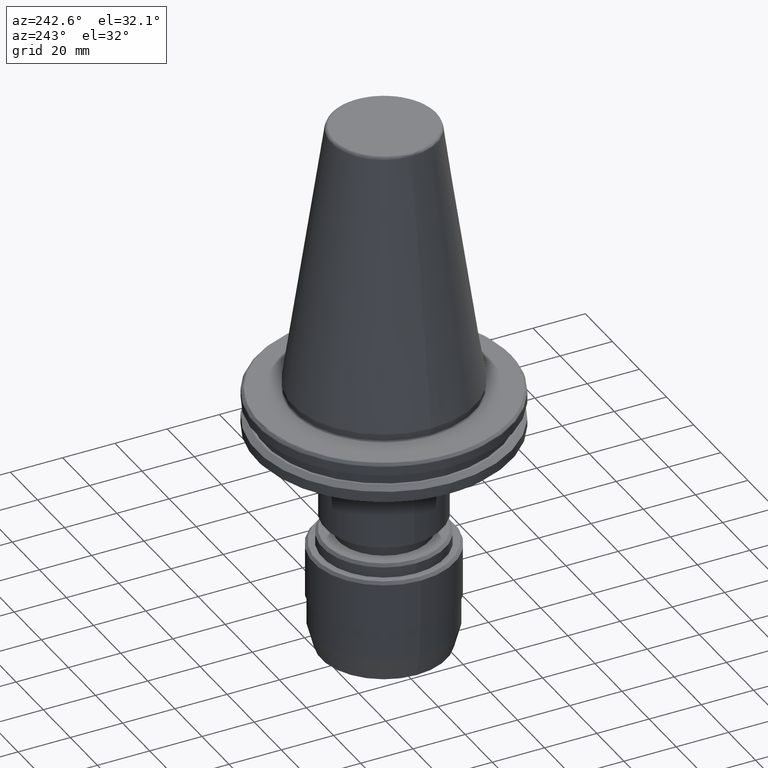
[diagram: clean part render]
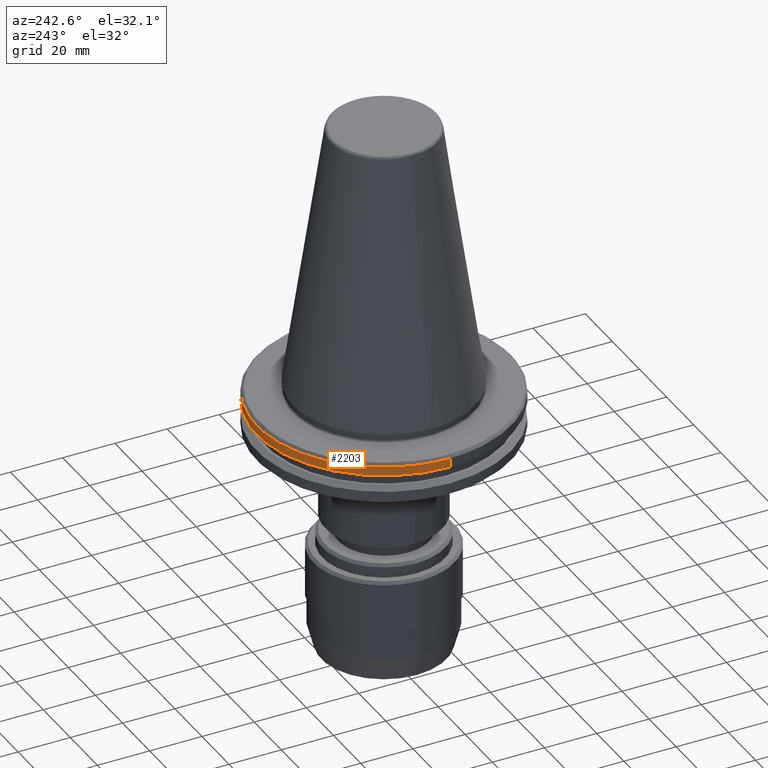
[diagram: same view with one face highlighted and labeled with its STEP entity id]
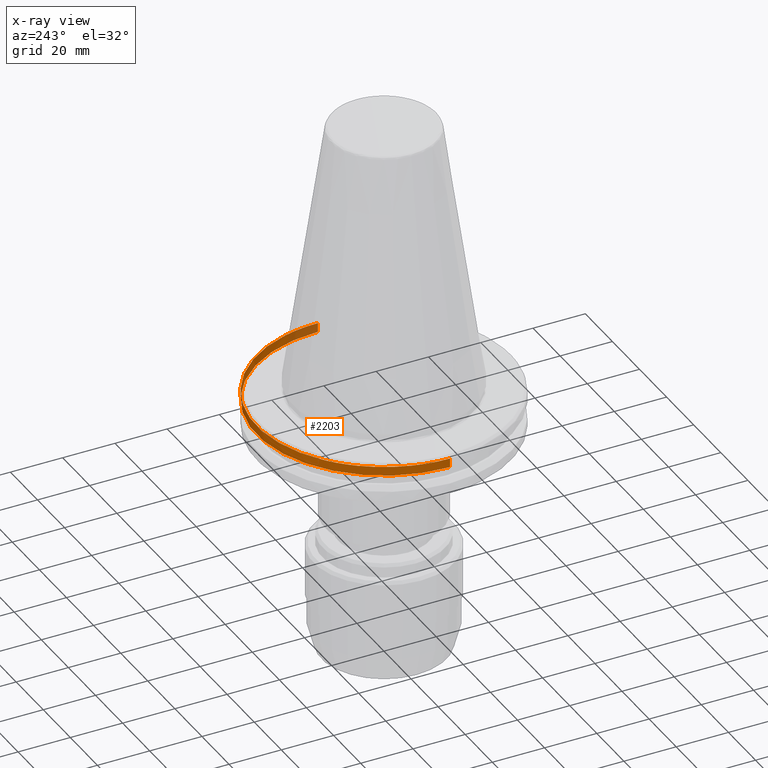
[diagram: x-ray of the same camera — body ghosted, the highlighted face saturated]
A machine part, auxiliary view. The second image highlights one B-rep face of the part: STEP entity #2203.
The next image is the same camera in x-ray: the body ghosted, the highlighted face saturated — about 11% of this face is hidden behind the body in this view.
In plain terms, the highlighted cylindrical surface (partial cylindrical patch) has radius 48.75 mm, axis along (0, 0, 1).
Its self-contained STEP definition (entity closure, byte-faithful):
#121 = DIRECTION ( 'NONE',  ( -0.0000000000000000000, -0.0000000000000000000, 1.000000000000000000 ) ) ;
#151 = EDGE_CURVE ( 'NONE', #2202, #2644, #1376, .T. ) ;
#184 = DIRECTION ( 'NONE',  ( 1.000000000000000000, 0.0000000000000000000, 0.0000000000000000000 ) ) ;
#189 = DIRECTION ( 'NONE',  ( -0.0000000000000000000, -0.0000000000000000000, -1.000000000000000000 ) ) ;
#193 = CARTESIAN_POINT ( 'NONE',  ( 0.0000000000000000000, 0.0000000000000000000, -4.365685424949236700 ) ) ;
#325 = DIRECTION ( 'NONE',  ( 1.000000000000000000, -1.776356839400250500E-015, 0.0000000000000000000 ) ) ;
#345 = DIRECTION ( 'NONE',  ( -0.0000000000000000000, -0.0000000000000000000, -1.000000000000000000 ) ) ;
#356 = CARTESIAN_POINT ( 'NONE',  ( 0.0000000000000000000, 0.0000000000000000000, -4.365685424949236700 ) ) ;
#427 = EDGE_CURVE ( 'NONE', #2657, #2644, #1594, .T. ) ;
#529 = CARTESIAN_POINT ( 'NONE',  ( -29.99999999999999600, 38.42606537234850400, -4.365685424949236700 ) ) ;
#560 = DIRECTION ( 'NONE',  ( 1.000000000000000000, 0.0000000000000000000, 0.0000000000000000000 ) ) ;
#728 = CARTESIAN_POINT ( 'NONE',  ( 46.87302845420868600, 13.39707817141269600, -4.365685424949236700 ) ) ;
#739 = ORIENTED_EDGE ( 'NONE', *, *, #3321, .F. ) ;
#741 = DIRECTION ( 'NONE',  ( 0.0000000000000000000, 0.0000000000000000000, 1.000000000000000000 ) ) ;
#748 = CARTESIAN_POINT ( 'NONE',  ( -48.75000000000000000, 5.970153145843347100E-015, -7.852404735808352000 ) ) ;
#760 = CARTESIAN_POINT ( 'NONE',  ( 0.0000000000000000000, 0.0000000000000000000, 113.5216080541959500 ) ) ;
#770 = ORIENTED_EDGE ( 'NONE', *, *, #3079, .T. ) ;
#780 = DIRECTION ( 'NONE',  ( 1.000000000000000000, 0.0000000000000000000, 0.0000000000000000000 ) ) ;
#802 = ORIENTED_EDGE ( 'NONE', *, *, #3264, .F. ) ;
#861 = AXIS2_PLACEMENT_3D ( 'NONE', #1341, #1330, #1327 ) ;
#871 = VERTEX_POINT ( 'NONE', #2025 ) ;
#898 = CIRCLE ( 'NONE', #1666, 48.75000000000000000 ) ;
#928 = ORIENTED_EDGE ( 'NONE', *, *, #2459, .T. ) ;
#930 = CARTESIAN_POINT ( 'NONE',  ( 0.0000000000000000000, 0.0000000000000000000, -7.852404735808352000 ) ) ;
#963 = CARTESIAN_POINT ( 'NONE',  ( -46.83796378645138200, 13.51915856623735800, -4.365685424949236700 ) ) ;
#1031 = EDGE_CURVE ( 'NONE', #2290, #871, #1978, .T. ) ;
#1050 = CARTESIAN_POINT ( 'NONE',  ( -48.75000000000000000, 5.970153145843347100E-015, 113.5216080541959500 ) ) ;
#1096 = AXIS2_PLACEMENT_3D ( 'NONE', #356, #345, #325 ) ;
#1277 = ORIENTED_EDGE ( 'NONE', *, *, #151, .T. ) ;
#1309 = AXIS2_PLACEMENT_3D ( 'NONE', #760, #741, #780 ) ;
#1327 = DIRECTION ( 'NONE',  ( 1.000000000000000000, 0.0000000000000000000, 0.0000000000000000000 ) ) ;
#1330 = DIRECTION ( 'NONE',  ( -0.0000000000000000000, -0.0000000000000000000, 1.000000000000000000 ) ) ;
#1337 = CARTESIAN_POINT ( 'NONE',  ( -48.75000000000000000, 5.970153145843347100E-015, -4.365685424949236700 ) ) ;
#1341 = CARTESIAN_POINT ( 'NONE',  ( 0.0000000000000000000, 0.0000000000000000000, -4.365685424949236700 ) ) ;
#1375 = VECTOR ( 'NONE', #1389, 1000.000000000000000 ) ;
#1376 = LINE ( 'NONE', #1050, #1375 ) ;
#1389 = DIRECTION ( 'NONE',  ( 0.0000000000000000000, 0.0000000000000000000, 1.000000000000000000 ) ) ;
#1407 = LINE ( 'NONE', #2541, #2066 ) ;
#1535 = ORIENTED_EDGE ( 'NONE', *, *, #2543, .T. ) ;
#1594 = CIRCLE ( 'NONE', #2380, 48.75000000000000000 ) ;
#1634 = ORIENTED_EDGE ( 'NONE', *, *, #427, .F. ) ;
#1666 = AXIS2_PLACEMENT_3D ( 'NONE', #1816, #121, #2065 ) ;
#1722 = ORIENTED_EDGE ( 'NONE', *, *, #1031, .F. ) ;
#1816 = CARTESIAN_POINT ( 'NONE',  ( 0.0000000000000000000, 0.0000000000000000000, -4.365685424949236700 ) ) ;
#1885 = VERTEX_POINT ( 'NONE', #2514 ) ;
#1955 = AXIS2_PLACEMENT_3D ( 'NONE', #930, #3425, #560 ) ;
#1978 = CIRCLE ( 'NONE', #861, 48.75000000000000000 ) ;
#2025 = CARTESIAN_POINT ( 'NONE',  ( -38.42606537234849600, 30.00000000000000000, -4.365685424949236700 ) ) ;
#2065 = DIRECTION ( 'NONE',  ( 1.000000000000000000, 0.0000000000000000000, 0.0000000000000000000 ) ) ;
#2066 = VECTOR ( 'NONE', #2285, 1000.000000000000000 ) ;
#2163 = CYLINDRICAL_SURFACE ( 'NONE', #1309, 48.75000000000000000 ) ;
#2169 = FACE_OUTER_BOUND ( 'NONE', #2510, .T. ) ;
#2202 = VERTEX_POINT ( 'NONE', #748 ) ;
#2203 = ADVANCED_FACE ( 'NONE', ( #2169 ), #2163, .T. ) ;
#2210 = VERTEX_POINT ( 'NONE', #728 ) ;
#2285 = DIRECTION ( 'NONE',  ( 0.0000000000000000000, 0.0000000000000000000, 1.000000000000000000 ) ) ;
#2290 = VERTEX_POINT ( 'NONE', #529 ) ;
#2301 = AXIS2_PLACEMENT_3D ( 'NONE', #193, #189, #184 ) ;
#2380 = AXIS2_PLACEMENT_3D ( 'NONE', #3363, #2752, #3007 ) ;
#2408 = CIRCLE ( 'NONE', #2301, 48.75000000000000000 ) ;
#2437 = CIRCLE ( 'NONE', #1955, 48.75000000000000000 ) ;
#2459 = EDGE_CURVE ( 'NONE', #2657, #871, #2408, .T. ) ;
#2510 = EDGE_LOOP ( 'NONE', ( #1535, #1277, #1634, #928, #1722, #770, #739, #802 ) ) ;
#2514 = CARTESIAN_POINT ( 'NONE',  ( 48.75000000000000000, 0.0000000000000000000, -7.852404735808352000 ) ) ;
#2541 = CARTESIAN_POINT ( 'NONE',  ( 48.75000000000000000, 0.0000000000000000000, 113.5216080541959500 ) ) ;
#2543 = EDGE_CURVE ( 'NONE', #1885, #2202, #2437, .T. ) ;
#2621 = CARTESIAN_POINT ( 'NONE',  ( 48.75000000000000000, 0.0000000000000000000, -4.365685424949236700 ) ) ;
#2644 = VERTEX_POINT ( 'NONE', #1337 ) ;
#2650 = CIRCLE ( 'NONE', #1096, 48.75000000000000000 ) ;
#2657 = VERTEX_POINT ( 'NONE', #963 ) ;
#2669 = VERTEX_POINT ( 'NONE', #2621 ) ;
#2752 = DIRECTION ( 'NONE',  ( -0.0000000000000000000, -0.0000000000000000000, 1.000000000000000000 ) ) ;
#3007 = DIRECTION ( 'NONE',  ( 1.000000000000000000, 0.0000000000000000000, 0.0000000000000000000 ) ) ;
#3079 = EDGE_CURVE ( 'NONE', #2290, #2210, #2650, .T. ) ;
#3264 = EDGE_CURVE ( 'NONE', #1885, #2669, #1407, .T. ) ;
#3321 = EDGE_CURVE ( 'NONE', #2669, #2210, #898, .T. ) ;
#3363 = CARTESIAN_POINT ( 'NONE',  ( 0.0000000000000000000, 0.0000000000000000000, -4.365685424949236700 ) ) ;
#3425 = DIRECTION ( 'NONE',  ( 0.0000000000000000000, 0.0000000000000000000, 1.000000000000000000 ) ) ;